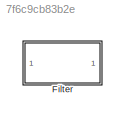
MODEL slx_7f6c9cb83b2e
KIND model
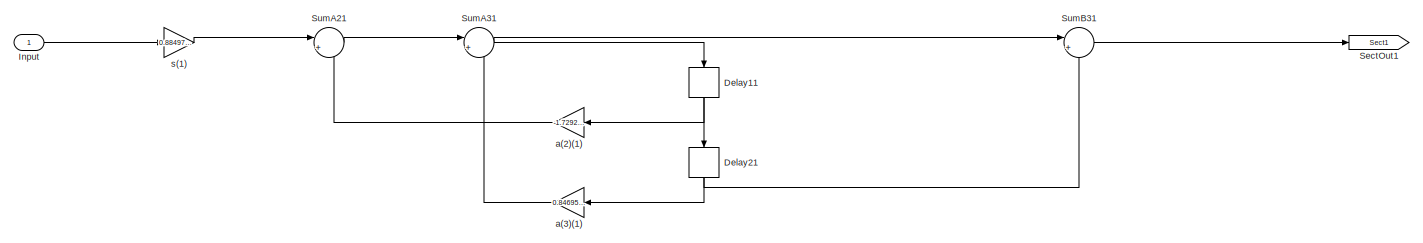
[diagram: Filter - part 1/3, left side, full height]
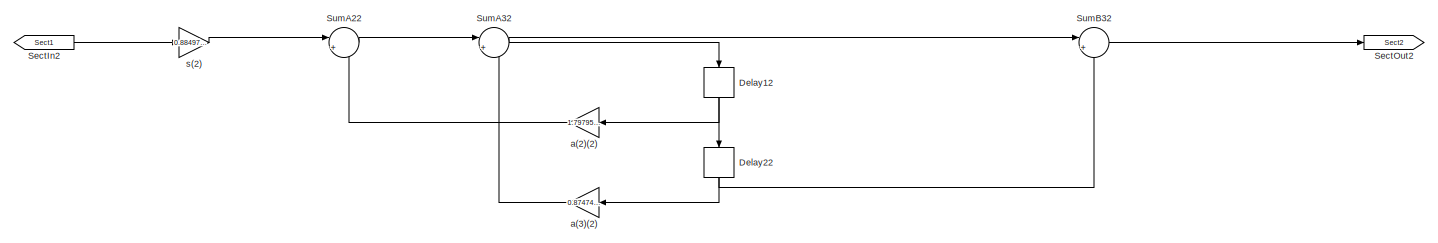
[diagram: Filter - part 2/3, center side, full height]
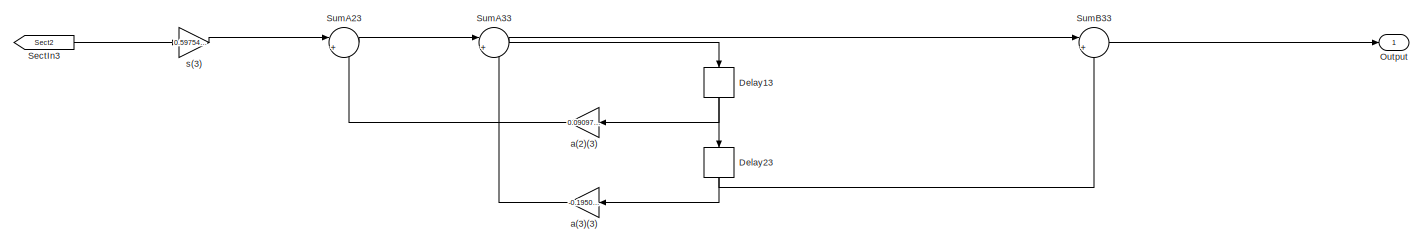
[diagram: Filter - part 3/3, right side, full height]
BLOCK [SubSystem] Filter
  ErrorFcn = dspFilterRealizedInBasicElemsAlgLoopErrFcnCallback
  Ports = [1, 1]
  RequestExecContextInheritance = off
  Tag = FilterWizardSubSystem
  UserDataPersistent = on
BLOCK [Delay] Filter/Delay11
  DelayLength = 1
  InitialCondition = 0
  InputPortMap = u0
  Ports = [1, 1]
BLOCK [Delay] Filter/Delay12
  DelayLength = 1
  InitialCondition = 0
  InputPortMap = u0
  Ports = [1, 1]
BLOCK [Delay] Filter/Delay13
  DelayLength = 1
  InitialCondition = 0
  InputPortMap = u0
  Ports = [1, 1]
BLOCK [Delay] Filter/Delay21
  DelayLength = 1
  InitialCondition = 0
  InputPortMap = u0
  Ports = [1, 1]
BLOCK [Delay] Filter/Delay22
  DelayLength = 1
  InitialCondition = 0
  InputPortMap = u0
  Ports = [1, 1]
BLOCK [Delay] Filter/Delay23
  DelayLength = 1
  InitialCondition = 0
  InputPortMap = u0
  Ports = [1, 1]
BLOCK [Inport] Filter/Input
  IconDisplay = Port number
BLOCK [Outport] Filter/Output
  IconDisplay = Port number
BLOCK [From] Filter/SectIn2
  GotoTag = Sect1
BLOCK [From] Filter/SectIn3
  GotoTag = Sect2
BLOCK [Goto] Filter/SectOut1
  GotoTag = Sect1
BLOCK [Goto] Filter/SectOut2
  GotoTag = Sect2
BLOCK [Sum] Filter/SumA21
  IconShape = round
  InputSameDT = off
  Inputs = |+-
  Ports = [2, 1]
  RndMeth = Nearest
BLOCK [Sum] Filter/SumA22
  IconShape = round
  InputSameDT = off
  Inputs = |+-
  Ports = [2, 1]
  RndMeth = Nearest
BLOCK [Sum] Filter/SumA23
  IconShape = round
  InputSameDT = off
  Inputs = |+-
  Ports = [2, 1]
  RndMeth = Nearest
BLOCK [Sum] Filter/SumA31
  IconShape = round
  InputSameDT = off
  Inputs = |+-
  Ports = [2, 1]
  RndMeth = Nearest
BLOCK [Sum] Filter/SumA32
  IconShape = round
  InputSameDT = off
  Inputs = |+-
  Ports = [2, 1]
  RndMeth = Nearest
BLOCK [Sum] Filter/SumA33
  IconShape = round
  InputSameDT = off
  Inputs = |+-
  Ports = [2, 1]
  RndMeth = Nearest
BLOCK [Sum] Filter/SumB31
  IconShape = round
  InputSameDT = off
  Inputs = |+-
  Ports = [2, 1]
  RndMeth = Nearest
BLOCK [Sum] Filter/SumB32
  IconShape = round
  InputSameDT = off
  Inputs = |+-
  Ports = [2, 1]
  RndMeth = Nearest
BLOCK [Sum] Filter/SumB33
  IconShape = round
  InputSameDT = off
  Inputs = |+-
  Ports = [2, 1]
  RndMeth = Nearest
BLOCK [Gain] Filter/a(2)(1)
  Gain = -1.7292195717005869
  ParamDataTypeStr = double
  RndMeth = Nearest
BLOCK [Gain] Filter/a(2)(2)
  Gain = 1.797957474694678
  ParamDataTypeStr = double
  RndMeth = Nearest
BLOCK [Gain] Filter/a(2)(3)
  Gain = 0.090972797076221579
  ParamDataTypeStr = double
  RndMeth = Nearest
BLOCK [Gain] Filter/a(3)(1)
  Gain = 0.84695672795657673
  ParamDataTypeStr = double
  RndMeth = Nearest
BLOCK [Gain] Filter/a(3)(2)
  Gain = 0.87474639288367206
  ParamDataTypeStr = double
  RndMeth = Nearest
BLOCK [Gain] Filter/a(3)(3)
  Gain = -0.19508844867184374
  ParamDataTypeStr = double
  RndMeth = Nearest
BLOCK [Gain] Filter/s(1)
  Gain = 0.88497051970122076
  ParamDataTypeStr = double
  RndMeth = Nearest
BLOCK [Gain] Filter/s(2)
  Gain = 0.88497051970122076
  ParamDataTypeStr = double
  RndMeth = Nearest
BLOCK [Gain] Filter/s(3)
  Gain = 0.59754422433592191
  ParamDataTypeStr = double
  RndMeth = Nearest
NET Filter/Delay11:1 -> Filter/Delay21:1, Filter/a(2)(1):1
NET Filter/Delay12:1 -> Filter/Delay22:1, Filter/a(2)(2):1
NET Filter/Delay13:1 -> Filter/Delay23:1, Filter/a(2)(3):1
NET Filter/Delay21:1 -> Filter/SumB31:2, Filter/a(3)(1):1
NET Filter/Delay22:1 -> Filter/SumB32:2, Filter/a(3)(2):1
NET Filter/Delay23:1 -> Filter/SumB33:2, Filter/a(3)(3):1
LINE Filter/Input:1 -> Filter/s(1):1
LINE Filter/SectIn2:1 -> Filter/s(2):1
LINE Filter/SectIn3:1 -> Filter/s(3):1
LINE Filter/SumA21:1 -> Filter/SumA31:1
LINE Filter/SumA22:1 -> Filter/SumA32:1
LINE Filter/SumA23:1 -> Filter/SumA33:1
NET Filter/SumA31:1 -> Filter/Delay11:1, Filter/SumB31:1
NET Filter/SumA32:1 -> Filter/Delay12:1, Filter/SumB32:1
NET Filter/SumA33:1 -> Filter/Delay13:1, Filter/SumB33:1
LINE Filter/SumB31:1 -> Filter/SectOut1:1
LINE Filter/SumB32:1 -> Filter/SectOut2:1
LINE Filter/SumB33:1 -> Filter/Output:1
LINE Filter/a(2)(1):1 -> Filter/SumA21:2
LINE Filter/a(2)(2):1 -> Filter/SumA22:2
LINE Filter/a(2)(3):1 -> Filter/SumA23:2
LINE Filter/a(3)(1):1 -> Filter/SumA31:2
LINE Filter/a(3)(2):1 -> Filter/SumA32:2
LINE Filter/a(3)(3):1 -> Filter/SumA33:2
LINE Filter/s(1):1 -> Filter/SumA21:1
LINE Filter/s(2):1 -> Filter/SumA22:1
LINE Filter/s(3):1 -> Filter/SumA23:1
note: NET lines group one-source signal fan-out (src -> all destinations, sorted); 1:1 wires keep LINE
